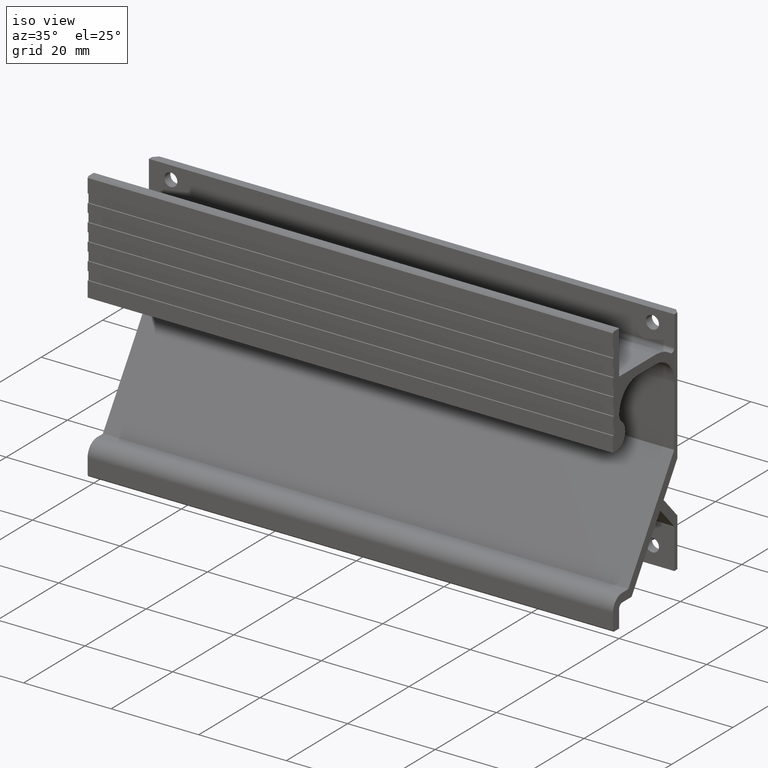
[diagram: clean part render]
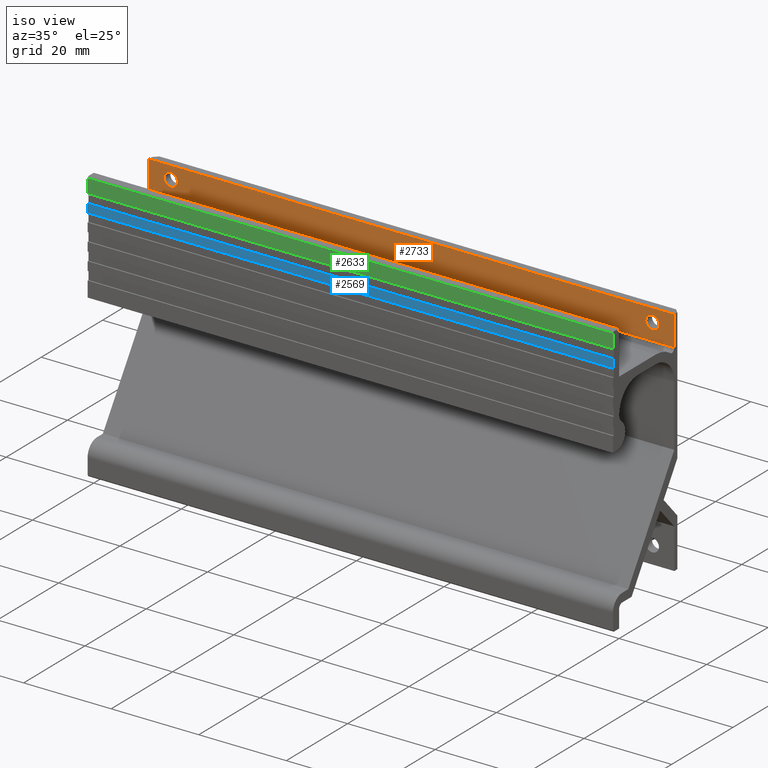
[diagram: same view with three faces highlighted in distinct colors, each labeled with its STEP entity id]
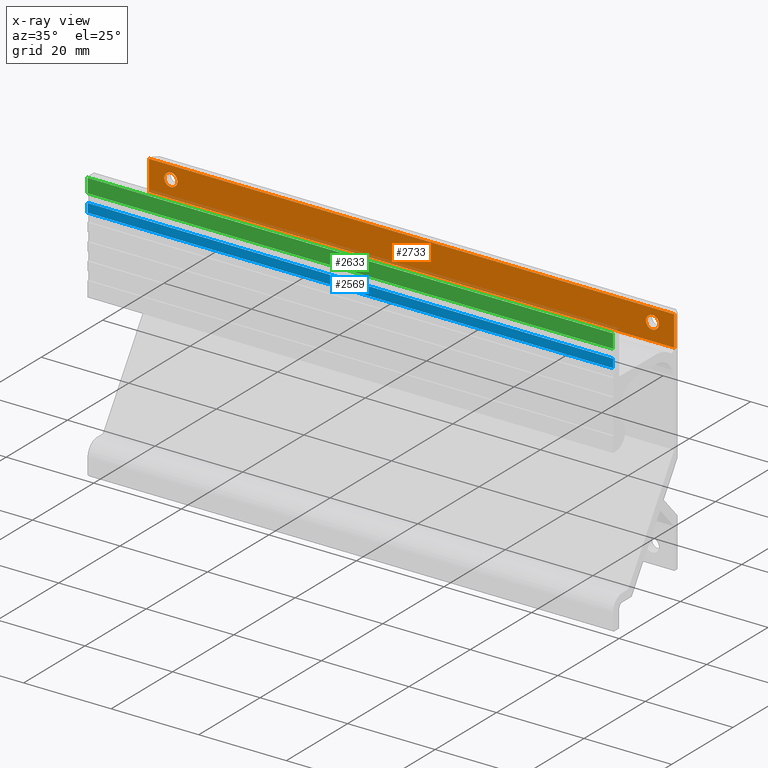
[diagram: x-ray of the same camera — body ghosted, the three highlighted faces saturated]
A machine part, iso view with three faces highlighted in distinct colors.
The next image is the same camera in x-ray (body ghosted, the three faces saturated) — at least one of them is partly hidden behind the body in this view.
Their STEP definitions:

[orange] entity #2733 — the highlighted face is a freeform B-spline surface patch.
#62=CARTESIAN_POINT('',(-55.0,18.0,56.500000000000000));
#63=VERTEX_POINT('',#62);
#64=CARTESIAN_POINT('',(-56.495376000531287,18.0,55.117688644460841));
#65=VERTEX_POINT('',#64);
#66=CARTESIAN_POINT('',(-55.0,18.0,56.500000000000000));
#67=CARTESIAN_POINT('',(-56.386585735870632,18.0,56.500000000000014));
#68=CARTESIAN_POINT('',(-56.495376000531301,18.000000000000004,55.117688644460841));
#76=(BOUNDED_CURVE()B_SPLINE_CURVE(2,(#66,#67,#68),.UNSPECIFIED.,.F.,.U.)B_SPLINE_CURVE_WITH_KNOTS((3,3),(0.0,0.236331300433512),.UNSPECIFIED.)CURVE()GEOMETRIC_REPRESENTATION_ITEM()RATIONAL_B_SPLINE_CURVE((1.0,0.723120658838639,0.969723355755985))REPRESENTATION_ITEM(''));
#77=EDGE_CURVE('',#63,#65,#76,.T.);
#118=CARTESIAN_POINT('',(-53.504623999468713,18.0,54.882311355539137));
#119=VERTEX_POINT('',#118);
#125=CARTESIAN_POINT('',(-53.504623999468699,18.0,54.882311355539152));
#126=CARTESIAN_POINT('',(-53.499999999999993,18.000000000000007,54.941064838615389));
#127=CARTESIAN_POINT('',(-53.500000000000000,18.0,55.0));
#128=CARTESIAN_POINT('',(-53.500000000000007,18.000000000000007,56.500000000000000));
#129=CARTESIAN_POINT('',(-55.0,18.0,56.500000000000000));
#137=(BOUNDED_CURVE()B_SPLINE_CURVE(2,(#125,#126,#127,#128,#129),.UNSPECIFIED.,.F.,.U.)B_SPLINE_CURVE_WITH_KNOTS((3,2,3),(0.736331300433511,0.750000000000000,1.0),.UNSPECIFIED.)CURVE()GEOMETRIC_REPRESENTATION_ITEM()RATIONAL_B_SPLINE_CURVE((0.969723355755983,0.983986122347908,1.0,0.707106781186548,1.0))REPRESENTATION_ITEM(''));
#138=EDGE_CURVE('',#119,#63,#137,.T.);
#161=CARTESIAN_POINT('',(-55.0,18.0,53.500000000000000));
#162=VERTEX_POINT('',#161);
#163=CARTESIAN_POINT('',(-56.495376000531294,17.999999999999996,55.117688644460848));
#164=CARTESIAN_POINT('',(-56.500000000000007,18.000000000000004,55.058935161384618));
#165=CARTESIAN_POINT('',(-56.500000000000000,18.0,55.0));
#166=CARTESIAN_POINT('',(-56.500000000000000,18.000000000000007,53.500000000000007));
#167=CARTESIAN_POINT('',(-55.0,18.0,53.500000000000000));
#175=(BOUNDED_CURVE()B_SPLINE_CURVE(2,(#163,#164,#165,#166,#167),.UNSPECIFIED.,.F.,.U.)B_SPLINE_CURVE_WITH_KNOTS((3,2,3),(0.236331300433512,0.250000000000000,0.500000000000000),.UNSPECIFIED.)CURVE()GEOMETRIC_REPRESENTATION_ITEM()RATIONAL_B_SPLINE_CURVE((0.969723355755985,0.983986122347909,1.0,0.707106781186548,1.0))REPRESENTATION_ITEM(''));
#176=EDGE_CURVE('',#65,#162,#175,.T.);
#178=CARTESIAN_POINT('',(-55.0,18.0,53.500000000000000));
#179=CARTESIAN_POINT('',(-53.613414264129389,18.000000000000007,53.500000000000007));
#180=CARTESIAN_POINT('',(-53.504623999468706,18.000000000000004,54.882311355539152));
#188=(BOUNDED_CURVE()B_SPLINE_CURVE(2,(#178,#179,#180),.UNSPECIFIED.,.F.,.U.)B_SPLINE_CURVE_WITH_KNOTS((3,3),(0.500000000000000,0.736331300433510),.UNSPECIFIED.)CURVE()GEOMETRIC_REPRESENTATION_ITEM()RATIONAL_B_SPLINE_CURVE((1.0,0.723120658838641,0.969723355755981))REPRESENTATION_ITEM(''));
#189=EDGE_CURVE('',#162,#119,#188,.T.);
#608=CARTESIAN_POINT('',(55.0,18.0,56.500000000000000));
#609=VERTEX_POINT('',#608);
#610=CARTESIAN_POINT('',(53.504623999468713,18.0,55.117688644460848));
#611=VERTEX_POINT('',#610);
#612=CARTESIAN_POINT('',(55.0,18.0,56.500000000000000));
#613=CARTESIAN_POINT('',(53.613414264129368,17.999999999999996,56.500000000000007));
#614=CARTESIAN_POINT('',(53.504623999468706,17.999999999999996,55.117688644460856));
#622=(BOUNDED_CURVE()B_SPLINE_CURVE(2,(#612,#613,#614),.UNSPECIFIED.,.F.,.U.)B_SPLINE_CURVE_WITH_KNOTS((3,3),(0.0,0.236331300433511),.UNSPECIFIED.)CURVE()GEOMETRIC_REPRESENTATION_ITEM()RATIONAL_B_SPLINE_CURVE((1.0,0.723120658838639,0.969723355755985))REPRESENTATION_ITEM(''));
#623=EDGE_CURVE('',#609,#611,#622,.T.);
#664=CARTESIAN_POINT('',(56.495376000531287,18.0,54.882311355539152));
#665=VERTEX_POINT('',#664);
#671=CARTESIAN_POINT('',(56.495376000531294,18.0,54.882311355539159));
#672=CARTESIAN_POINT('',(56.500000000000007,17.999999999999996,54.941064838615382));
#673=CARTESIAN_POINT('',(56.500000000000000,18.0,55.0));
#674=CARTESIAN_POINT('',(56.500000000000000,18.000000000000007,56.500000000000000));
#675=CARTESIAN_POINT('',(55.0,18.0,56.500000000000000));
#683=(BOUNDED_CURVE()B_SPLINE_CURVE(2,(#671,#672,#673,#674,#675),.UNSPECIFIED.,.F.,.U.)B_SPLINE_CURVE_WITH_KNOTS((3,2,3),(0.736331300433510,0.750000000000000,1.0),.UNSPECIFIED.)CURVE()GEOMETRIC_REPRESENTATION_ITEM()RATIONAL_B_SPLINE_CURVE((0.969723355755982,0.983986122347907,1.0,0.707106781186548,1.0))REPRESENTATION_ITEM(''));
#684=EDGE_CURVE('',#665,#609,#683,.T.);
#707=CARTESIAN_POINT('',(55.0,18.0,53.500000000000000));
#708=VERTEX_POINT('',#707);
#709=CARTESIAN_POINT('',(53.504623999468706,18.0,55.117688644460848));
#710=CARTESIAN_POINT('',(53.500000000000007,18.0,55.058935161384618));
#711=CARTESIAN_POINT('',(53.500000000000000,18.0,55.0));
#712=CARTESIAN_POINT('',(53.500000000000007,18.000000000000007,53.500000000000007));
#713=CARTESIAN_POINT('',(55.0,18.0,53.500000000000000));
#721=(BOUNDED_CURVE()B_SPLINE_CURVE(2,(#709,#710,#711,#712,#713),.UNSPECIFIED.,.F.,.U.)B_SPLINE_CURVE_WITH_KNOTS((3,2,3),(0.236331300433511,0.250000000000000,0.500000000000000),.UNSPECIFIED.)CURVE()GEOMETRIC_REPRESENTATION_ITEM()RATIONAL_B_SPLINE_CURVE((0.969723355755984,0.983986122347908,1.0,0.707106781186548,1.0))REPRESENTATION_ITEM(''));
#722=EDGE_CURVE('',#611,#708,#721,.T.);
#724=CARTESIAN_POINT('',(55.0,18.0,53.500000000000000));
#725=CARTESIAN_POINT('',(56.386585735870625,18.000000000000007,53.500000000000007));
#726=CARTESIAN_POINT('',(56.495376000531287,18.000000000000004,54.882311355539152));
#734=(BOUNDED_CURVE()B_SPLINE_CURVE(2,(#724,#725,#726),.UNSPECIFIED.,.F.,.U.)B_SPLINE_CURVE_WITH_KNOTS((3,3),(0.500000000000000,0.736331300433510),.UNSPECIFIED.)CURVE()GEOMETRIC_REPRESENTATION_ITEM()RATIONAL_B_SPLINE_CURVE((1.0,0.723120658838641,0.969723355755981))REPRESENTATION_ITEM(''));
#735=EDGE_CURVE('',#708,#665,#734,.T.);
#929=CARTESIAN_POINT('',(60.0,18.0,58.0));
#930=VERTEX_POINT('',#929);
#936=CARTESIAN_POINT('',(60.0,18.0,51.099294999999799));
#937=VERTEX_POINT('',#936);
#938=CARTESIAN_POINT('',(60.0,18.0,58.0));
#939=CARTESIAN_POINT('',(60.0,18.0,51.099294999999799));
#940=QUASI_UNIFORM_CURVE('',1,(#938,#939),.UNSPECIFIED.,.F.,.U.);
#941=EDGE_CURVE('',#930,#937,#940,.T.);
#1740=CARTESIAN_POINT('',(-60.0,18.0,51.099294999999799));
#1741=VERTEX_POINT('',#1740);
#1757=CARTESIAN_POINT('',(-60.0,18.0,58.0));
#1758=VERTEX_POINT('',#1757);
#1759=CARTESIAN_POINT('',(-60.0,18.0,58.0));
#1760=CARTESIAN_POINT('',(-60.0,18.0,51.099294999999799));
#1761=QUASI_UNIFORM_CURVE('',1,(#1759,#1760),.UNSPECIFIED.,.F.,.U.);
#1762=EDGE_CURVE('',#1758,#1741,#1761,.T.);
#1854=CARTESIAN_POINT('',(-60.0,18.0,51.099294999999799));
#1855=CARTESIAN_POINT('',(60.0,18.0,51.099294999999799));
#1856=QUASI_UNIFORM_CURVE('',1,(#1854,#1855),.UNSPECIFIED.,.F.,.U.);
#1857=EDGE_CURVE('',#1741,#937,#1856,.T.);
#1878=CARTESIAN_POINT('',(-60.0,18.0,58.0));
#1879=CARTESIAN_POINT('',(60.0,18.0,58.0));
#1880=QUASI_UNIFORM_CURVE('',1,(#1878,#1879),.UNSPECIFIED.,.F.,.U.);
#1881=EDGE_CURVE('',#1758,#930,#1880,.T.);
#2710=CARTESIAN_POINT('',(-65.993999767416696,18.0,58.344690102758449));
#2711=CARTESIAN_POINT('',(-65.993999767416696,18.0,50.754606686457556));
#2712=CARTESIAN_POINT('',(65.994002986067528,18.0,58.344690102758449));
#2713=CARTESIAN_POINT('',(65.994002986067528,18.0,50.754606686457556));
#2714=B_SPLINE_SURFACE_WITH_KNOTS('',1,1,((#2710,#2712),(#2711,#2713)),.UNSPECIFIED.,.F.,.F.,.U.,(2,2),(2,2),(0.0,7.590083416300885),(0.0,131.988002753484210),.UNSPECIFIED.);
#2715=ORIENTED_EDGE('',*,*,#941,.F.);
#2716=ORIENTED_EDGE('',*,*,#1881,.F.);
#2717=ORIENTED_EDGE('',*,*,#1762,.T.);
#2718=ORIENTED_EDGE('',*,*,#1857,.T.);
#2719=EDGE_LOOP('',(#2715,#2716,#2717,#2718));
#2720=FACE_OUTER_BOUND('',#2719,.T.);
#2721=ORIENTED_EDGE('',*,*,#735,.F.);
#2722=ORIENTED_EDGE('',*,*,#722,.F.);
#2723=ORIENTED_EDGE('',*,*,#623,.F.);
#2724=ORIENTED_EDGE('',*,*,#684,.F.);
#2725=EDGE_LOOP('',(#2721,#2722,#2723,#2724));
#2726=FACE_BOUND('',#2725,.T.);
#2727=ORIENTED_EDGE('',*,*,#189,.F.);
#2728=ORIENTED_EDGE('',*,*,#176,.F.);
#2729=ORIENTED_EDGE('',*,*,#77,.F.);
#2730=ORIENTED_EDGE('',*,*,#138,.F.);
#2731=EDGE_LOOP('',(#2727,#2728,#2729,#2730));
#2732=FACE_BOUND('',#2731,.T.);
#2733=ADVANCED_FACE('',(#2720,#2726,#2732),#2714,.T.);

[blue] entity #2569 — the highlighted face is a freeform B-spline surface patch.
#1024=CARTESIAN_POINT('',(60.0,-2.0,56.500000000000000));
#1025=VERTEX_POINT('',#1024);
#1031=CARTESIAN_POINT('',(60.0,-2.0,54.500000000000000));
#1032=VERTEX_POINT('',#1031);
#1033=CARTESIAN_POINT('',(60.0,-2.0,56.500000000000000));
#1034=CARTESIAN_POINT('',(60.0,-2.0,54.500000000000000));
#1035=QUASI_UNIFORM_CURVE('',1,(#1033,#1034),.UNSPECIFIED.,.F.,.U.);
#1036=EDGE_CURVE('',#1025,#1032,#1035,.T.);
#1655=CARTESIAN_POINT('',(-60.0,-2.0,54.500000000000000));
#1656=VERTEX_POINT('',#1655);
#1662=CARTESIAN_POINT('',(-60.0,-2.0,56.500000000000000));
#1663=VERTEX_POINT('',#1662);
#1664=CARTESIAN_POINT('',(-60.0,-2.0,56.500000000000000));
#1665=CARTESIAN_POINT('',(-60.0,-2.0,54.500000000000000));
#1666=QUASI_UNIFORM_CURVE('',1,(#1664,#1665),.UNSPECIFIED.,.F.,.U.);
#1667=EDGE_CURVE('',#1663,#1656,#1666,.T.);
#2544=CARTESIAN_POINT('',(-60.0,-2.0,54.500000000000000));
#2545=CARTESIAN_POINT('',(60.0,-2.0,54.500000000000000));
#2546=QUASI_UNIFORM_CURVE('',1,(#2544,#2545),.UNSPECIFIED.,.F.,.U.);
#2547=EDGE_CURVE('',#1656,#1032,#2546,.T.);
#2554=CARTESIAN_POINT('',(-65.993999767416710,-2.0,56.599899996123618));
#2555=CARTESIAN_POINT('',(-65.993999767416710,-2.0,54.400099950232203));
#2556=CARTESIAN_POINT('',(65.994002986067542,-2.0,56.599899996123618));
#2557=CARTESIAN_POINT('',(65.994002986067542,-2.0,54.400099950232203));
#2558=B_SPLINE_SURFACE_WITH_KNOTS('',1,1,((#2554,#2556),(#2555,#2557)),.UNSPECIFIED.,.F.,.F.,.U.,(2,2),(2,2),(0.0,2.199800045891422),(0.0,131.988002753484210),.UNSPECIFIED.);
#2559=ORIENTED_EDGE('',*,*,#1036,.F.);
#2560=CARTESIAN_POINT('',(-60.0,-2.0,56.500000000000000));
#2561=CARTESIAN_POINT('',(60.0,-2.0,56.500000000000000));
#2562=QUASI_UNIFORM_CURVE('',1,(#2560,#2561),.UNSPECIFIED.,.F.,.U.);
#2563=EDGE_CURVE('',#1663,#1025,#2562,.T.);
#2564=ORIENTED_EDGE('',*,*,#2563,.F.);
#2565=ORIENTED_EDGE('',*,*,#1667,.T.);
#2566=ORIENTED_EDGE('',*,*,#2547,.T.);
#2567=EDGE_LOOP('',(#2559,#2564,#2565,#2566));
#2568=FACE_OUTER_BOUND('',#2567,.T.);
#2569=ADVANCED_FACE('',(#2568),#2558,.T.);

[green] entity #2633 — the highlighted face is a freeform B-spline surface patch.
#996=CARTESIAN_POINT('',(60.0,-2.0,61.700000000000003));
#997=VERTEX_POINT('',#996);
#1003=CARTESIAN_POINT('',(60.0,-2.0,58.500000000000000));
#1004=VERTEX_POINT('',#1003);
#1005=CARTESIAN_POINT('',(60.0,-2.0,61.700000000000003));
#1006=CARTESIAN_POINT('',(60.0,-2.0,58.500000000000000));
#1007=QUASI_UNIFORM_CURVE('',1,(#1005,#1006),.UNSPECIFIED.,.F.,.U.);
#1008=EDGE_CURVE('',#997,#1004,#1007,.T.);
#1683=CARTESIAN_POINT('',(-60.0,-2.0,58.500000000000000));
#1684=VERTEX_POINT('',#1683);
#1690=CARTESIAN_POINT('',(-60.0,-2.0,61.700000000000003));
#1691=VERTEX_POINT('',#1690);
#1692=CARTESIAN_POINT('',(-60.0,-2.0,61.700000000000003));
#1693=CARTESIAN_POINT('',(-60.0,-2.0,58.500000000000000));
#1694=QUASI_UNIFORM_CURVE('',1,(#1692,#1693),.UNSPECIFIED.,.F.,.U.);
#1695=EDGE_CURVE('',#1691,#1684,#1694,.T.);
#2608=CARTESIAN_POINT('',(-60.0,-2.0,58.500000000000000));
#2609=CARTESIAN_POINT('',(60.0,-2.0,58.500000000000000));
#2610=QUASI_UNIFORM_CURVE('',1,(#2608,#2609),.UNSPECIFIED.,.F.,.U.);
#2611=EDGE_CURVE('',#1684,#1004,#2610,.T.);
#2618=CARTESIAN_POINT('',(-65.993999767416710,-2.0,61.859840804859161));
#2619=CARTESIAN_POINT('',(-65.993999767416710,-2.0,58.340159881786342));
#2620=CARTESIAN_POINT('',(65.994002986067542,-2.0,61.859840804859161));
#2621=CARTESIAN_POINT('',(65.994002986067542,-2.0,58.340159881786342));
#2622=B_SPLINE_SURFACE_WITH_KNOTS('',1,1,((#2618,#2620),(#2619,#2621)),.UNSPECIFIED.,.F.,.F.,.U.,(2,2),(2,2),(0.0,3.519680923072819),(0.0,131.988002753484210),.UNSPECIFIED.);
#2623=ORIENTED_EDGE('',*,*,#1008,.F.);
#2624=CARTESIAN_POINT('',(-60.0,-2.0,61.700000000000003));
#2625=CARTESIAN_POINT('',(60.0,-2.0,61.700000000000003));
#2626=QUASI_UNIFORM_CURVE('',1,(#2624,#2625),.UNSPECIFIED.,.F.,.U.);
#2627=EDGE_CURVE('',#1691,#997,#2626,.T.);
#2628=ORIENTED_EDGE('',*,*,#2627,.F.);
#2629=ORIENTED_EDGE('',*,*,#1695,.T.);
#2630=ORIENTED_EDGE('',*,*,#2611,.T.);
#2631=EDGE_LOOP('',(#2623,#2628,#2629,#2630));
#2632=FACE_OUTER_BOUND('',#2631,.T.);
#2633=ADVANCED_FACE('',(#2632),#2622,.T.);